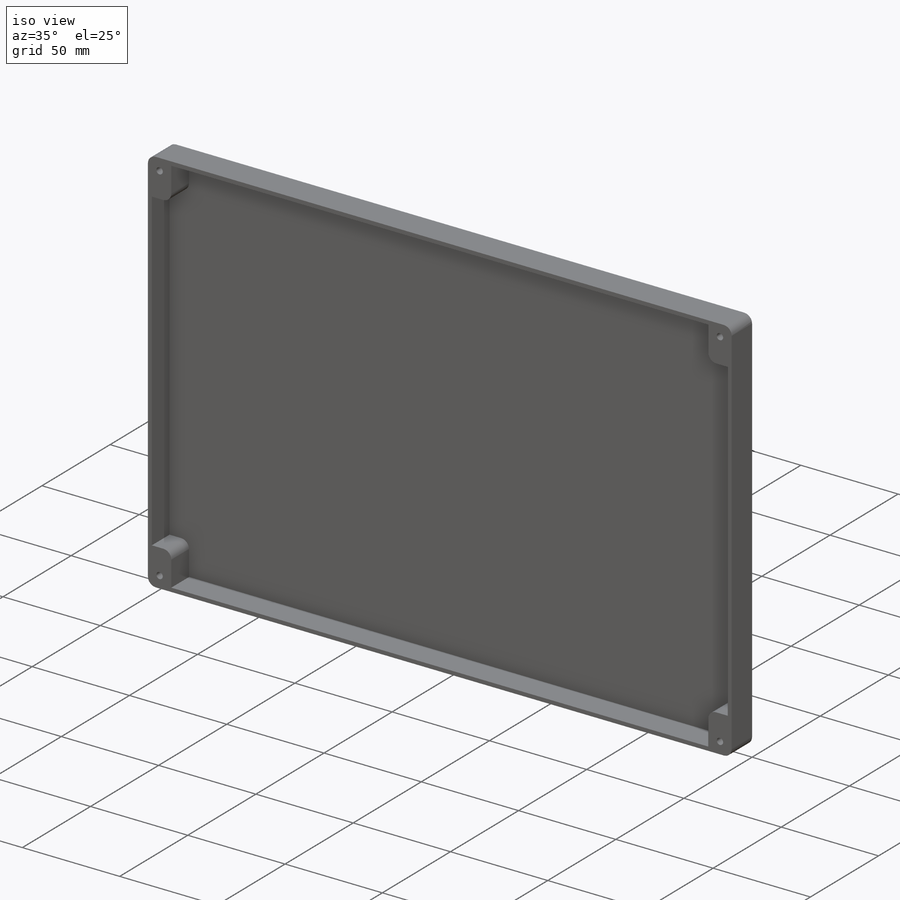
[diagram: iso view]
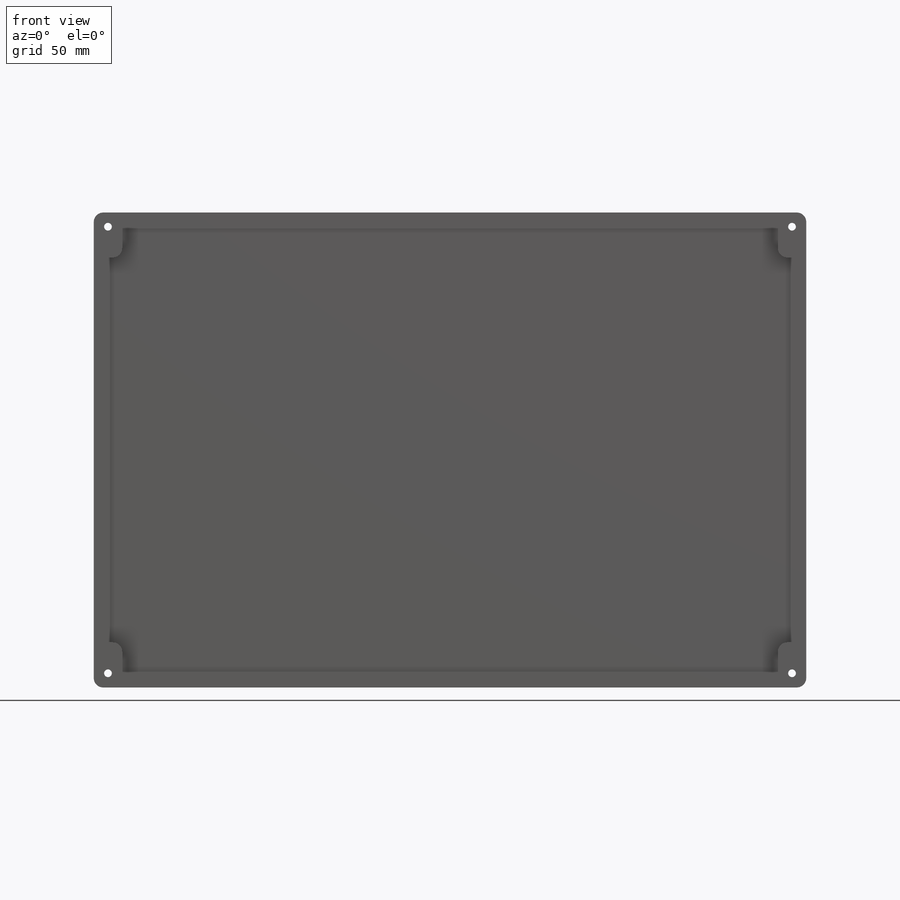
[diagram: front view]
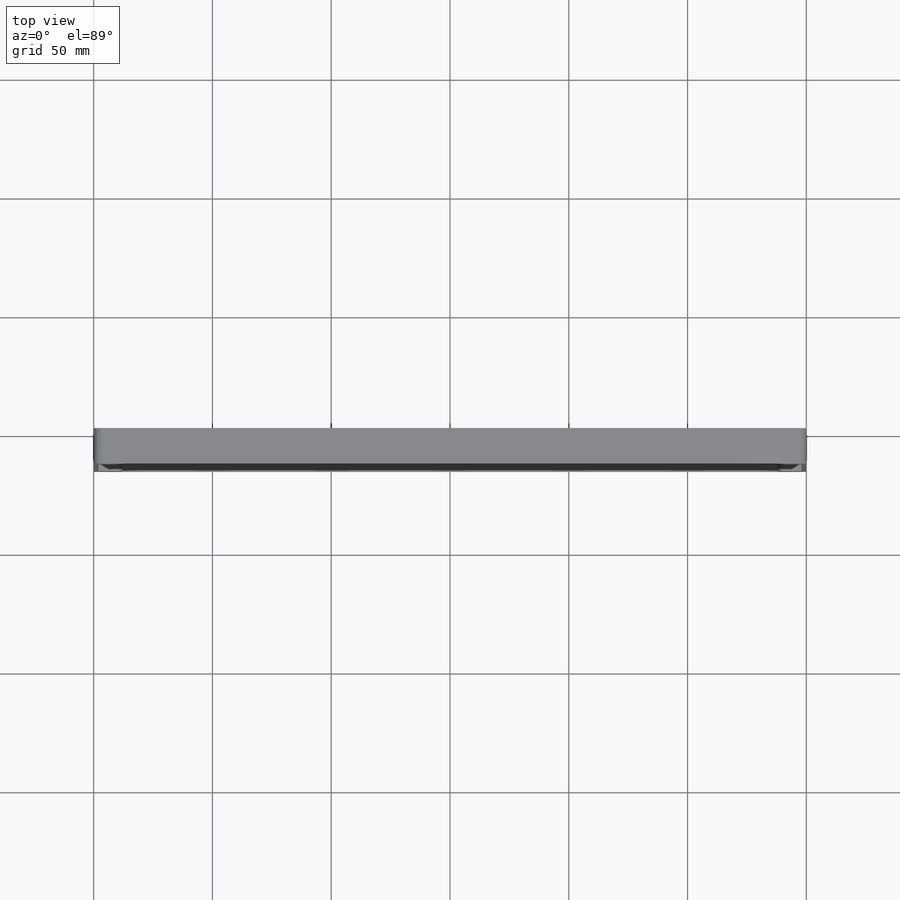
[diagram: top view]
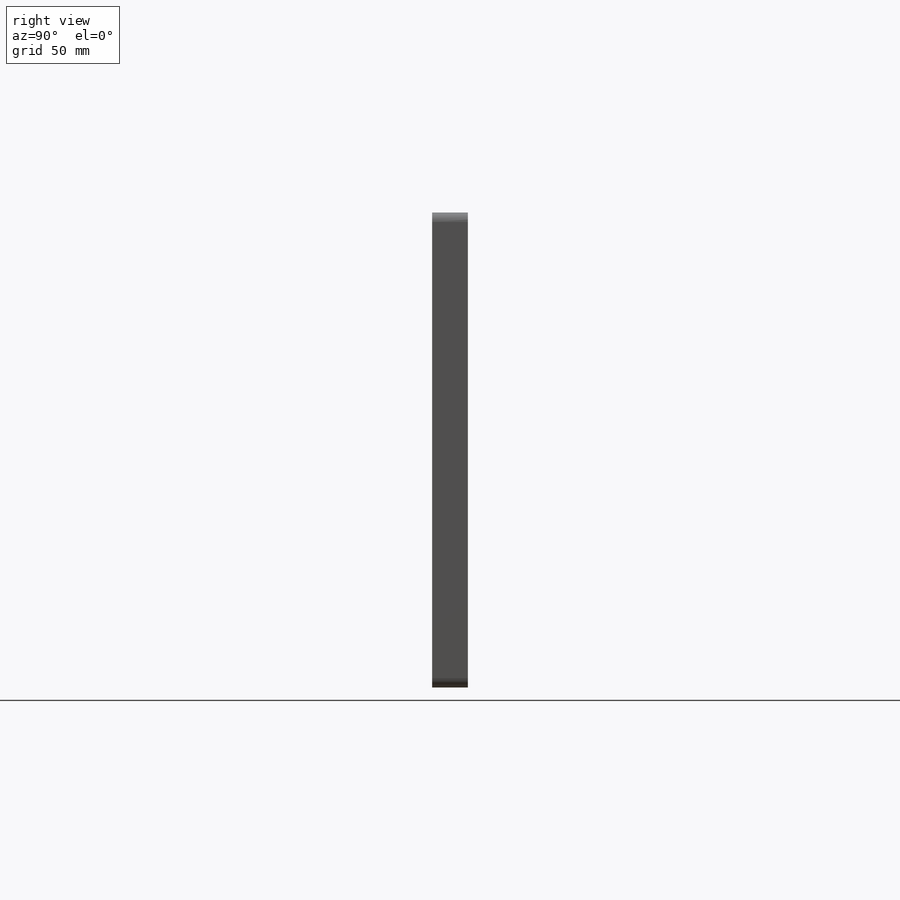
[diagram: right view]
SOLIDWORKS PART (.sldprt)
format: sldprt  version: not decoded by parser v0  size: 241,152 bytes
history: native  units: mm
features: sketch x4, plane x3, fillet x2, material x1, extrude x1, cut_extrude x1, hole x1 (+13 scaffold rows collapsed)
feature tree (26):
  scaffold x13  (default folders/planes/origin — collapsed)
  material  "Matériau <non spécifié>"
  plane  "Plan de face"
  plane  "Plan de dessus"
  plane  "Plan de droite"
  sketch  "Esquisse1"  dims[D1=270.0mm D2=270.0mm]
  extrude  "Extrusion1"  Depth=15mm
  fillet  "Congé2"  Radius=4mm
  sketch  "Esquisse2"  dims[D1=17.0mm D2=10.0mm D3=2.0mm D4=2.0mm D5=2.0mm D6=2.0mm]
  cut_extrude  "Extrusion2"  Depth=13mm
  fillet  "Congé3"  Radius=4mm
  hole  "Chambrage pour vis à tête ronde bombée #41"  Diameter=3.2639mm Depth=15mm
  sketch  "Esquisse7"  dims[c1.D1=6.0mm c1.D2=6.0mm c1.D3=6.0mm c1.D4=6.0mm c1.D5=6.0mm c1.D6=~6.680697mm c2.D6=90.0deg c3.D6=6.0mm c3.D7=6.0mm c3.D8=6.0mm]
  sketch  "Esquisse6"  dims[hole-wizard template sketch: 41 standard entries collapsed; hole parameters kept: c12.Diamètre du perçage jusqu'au prochain=3.2639mm c12.Profondeur du perçage jusqu'au prochain=15.0mm c12.Diamètre du chambrage=6.35mm c12.Profondeur du chambrage=~4.031996mm c12.Diamètre du fraisage entrant=7.62mm c12.D6=~4.399409mm c12.Angle du fraisage entrant=90.0deg]
decode coverage: 9 of 9 modeling features carry decoded parameters
note: ~ marks probable driven/reference dimensions
note: suppression state not decoded; provenance and decode notes live in map.json
